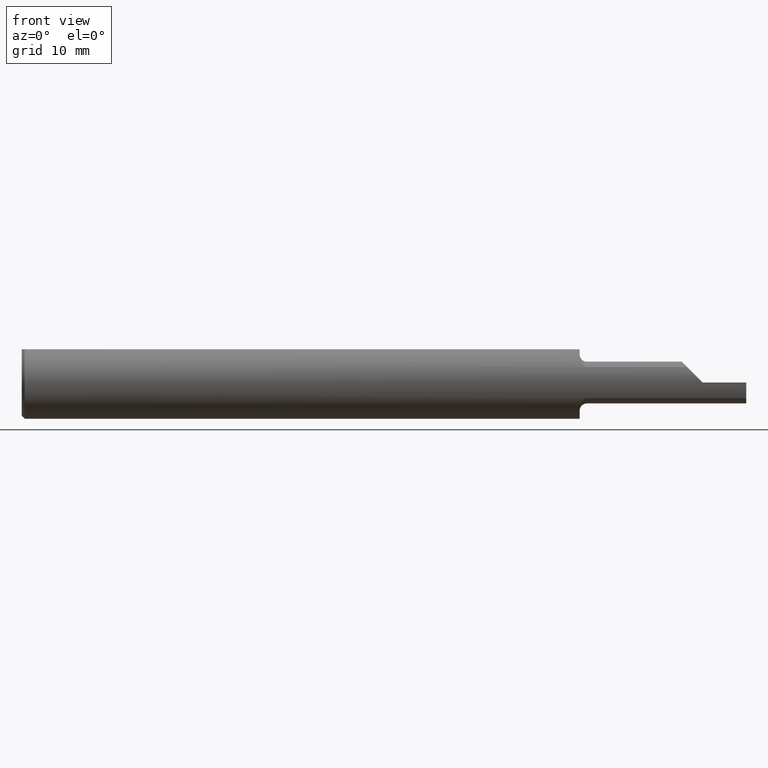
[diagram: clean part render]
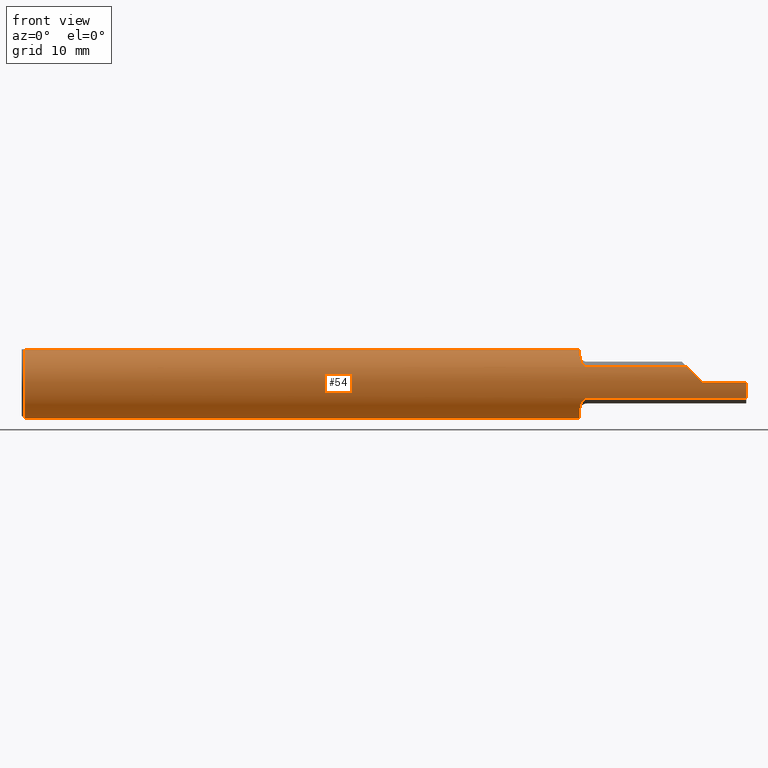
[diagram: same view with one face highlighted and labeled with its STEP entity id]
A machine part, front view. The second image highlights one B-rep face of the part: STEP entity #54.
In plain terms, the highlighted cylindrical surface (edge-blend (fillet) strip) has radius 3.1712 mm, axis along (-1, -0, -0).
Its self-contained STEP definition (entity closure, byte-faithful):
#4 = CARTESIAN_POINT ( 'NONE',  ( 2.313030448582554577, -0.1207107374854203552, 0.03696955141744460993 ) ) ;
#7 = DIRECTION ( 'NONE',  ( 1.000000000000000000, 0.000000000000000000, 0.000000000000000000 ) ) ;
#15 = ORIENTED_EDGE ( 'NONE', *, *, #138, .F. ) ;
#27 = CARTESIAN_POINT ( 'NONE',  ( 1.944775396606909901, -0.1121351437369266929, 0.05491640911844725137 ) ) ;
#32 = CARTESIAN_POINT ( 'NONE',  ( 1.934205702853136533, -0.1065695022460757119, 0.06518423682889426529 ) ) ;
#33 = EDGE_CURVE ( 'NONE', #263, #112, #49, .T. ) ;
#36 = CARTESIAN_POINT ( 'NONE',  ( 1.938831642198944216, -0.1097489668072911262, -0.05955949809225459524 ) ) ;
#40 = AXIS2_PLACEMENT_3D ( 'NONE', #523, #396, #604 ) ;
#41 = CARTESIAN_POINT ( 'NONE',  ( 2.500000000000000000, -0.1126372012336159106, -0.05385520771715490013 ) ) ;
#49 =( BOUNDED_CURVE ( )  B_SPLINE_CURVE ( 3, ( #565, #905, #4, #555 ),
 .UNSPECIFIED., .F., .T. ) 
 B_SPLINE_CURVE_WITH_KNOTS ( ( 4, 4 ),
 ( 4.712388980384689674, 5.158387891136146486 ),
 .UNSPECIFIED. ) 
 CURVE ( )  GEOMETRIC_REPRESENTATION_ITEM ( )  RATIONAL_B_SPLINE_CURVE ( ( 1.000000000000000000, 0.9834923269034181459, 0.9834923269034181459, 1.000000000000000000 ) ) 
 REPRESENTATION_ITEM ( '' )  );
#54 = ADVANCED_FACE ( 'NONE', ( #423 ), #209, .T. ) ;
#61 = VERTEX_POINT ( 'NONE', #251 ) ;
#64 = CARTESIAN_POINT ( 'NONE',  ( 0.01000000000000014939, 0.000000000000000000, 0.000000000000000000 ) ) ;
#68 = DIRECTION ( 'NONE',  ( 0.000000000000000000, 0.000000000000000000, -1.000000000000000000 ) ) ;
#71 = VERTEX_POINT ( 'NONE', #232 ) ;
#72 = CARTESIAN_POINT ( 'NONE',  ( 0.01000000000000014939, 0.000000000000000000, -0.1248500000000000026 ) ) ;
#73 = CARTESIAN_POINT ( 'NONE',  ( 1.925000000000000044, -0.08006202775636085678, 0.09579976102026406537 ) ) ;
#77 = DIRECTION ( 'NONE',  ( -1.000000000000000000, -0.000000000000000000, -0.000000000000000000 ) ) ;
#78 = VERTEX_POINT ( 'NONE', #41 ) ;
#85 = CARTESIAN_POINT ( 'NONE',  ( 1.925000000000000044, -0.08006202775636085678, 0.09579976102026406537 ) ) ;
#91 = CARTESIAN_POINT ( 'NONE',  ( 2.197229416990599926, -0.1126372012336159523, 0.05385520771715492788 ) ) ;
#93 = VECTOR ( 'NONE', #644, 39.37007874015748143 ) ;
#99 = VERTEX_POINT ( 'NONE', #720 ) ;
#105 = ORIENTED_EDGE ( 'NONE', *, *, #439, .T. ) ;
#112 = VERTEX_POINT ( 'NONE', #649 ) ;
#121 = DIRECTION ( 'NONE',  ( -1.000000000000000000, -0.000000000000000000, -0.000000000000000000 ) ) ;
#132 = ORIENTED_EDGE ( 'NONE', *, *, #567, .F. ) ;
#138 = EDGE_CURVE ( 'NONE', #865, #112, #366, .T. ) ;
#139 = CIRCLE ( 'NONE', #781, 0.1248500000000000026 ) ;
#158 = CARTESIAN_POINT ( 'NONE',  ( 1.925000000000000044, 0.04895916665957469188, 0.1148499999999999521 ) ) ;
#163 = CARTESIAN_POINT ( 'NONE',  ( 1.949999999999999956, -0.1126372012336159384, -0.05385520771715492788 ) ) ;
#169 = CARTESIAN_POINT ( 'NONE',  ( 1.944802286744101494, -0.1121433209818641918, -0.05490002475017542044 ) ) ;
#170 = AXIS2_PLACEMENT_3D ( 'NONE', #748, #628, #68 ) ;
#181 = VERTEX_POINT ( 'NONE', #321 ) ;
#189 = ORIENTED_EDGE ( 'NONE', *, *, #450, .F. ) ;
#192 = ORIENTED_EDGE ( 'NONE', *, *, #536, .F. ) ;
#209 = CYLINDRICAL_SURFACE ( 'NONE', #840, 0.1248500000000000026 ) ;
#211 = ORIENTED_EDGE ( 'NONE', *, *, #33, .T. ) ;
#219 = CARTESIAN_POINT ( 'NONE',  ( 0.000000000000000000, -0.04895916665957469188, 0.1148499999999999521 ) ) ;
#230 = CARTESIAN_POINT ( 'NONE',  ( 1.931963689329176281, -0.1039823658361042902, 0.06927888988223099287 ) ) ;
#232 = CARTESIAN_POINT ( 'NONE',  ( 2.500000000000000000, -0.1248500000000000026, 0.000000000000000000 ) ) ;
#235 = CARTESIAN_POINT ( 'NONE',  ( 1.927131788312331562, -0.09490829401950524880, 0.08128070330457727588 ) ) ;
#239 = CARTESIAN_POINT ( 'NONE',  ( 1.938827327854349969, -0.1097461625965755888, 0.05956452430189914521 ) ) ;
#241 = ORIENTED_EDGE ( 'NONE', *, *, #699, .F. ) ;
#251 = CARTESIAN_POINT ( 'NONE',  ( 1.925000000000000044, -0.08006202775636085678, -0.09579976102026406537 ) ) ;
#260 = VERTEX_POINT ( 'NONE', #534 ) ;
#263 = VERTEX_POINT ( 'NONE', #334 ) ;
#269 = VECTOR ( 'NONE', #7, 39.37007874015748143 ) ;
#309 = CARTESIAN_POINT ( 'NONE',  ( 1.947311625325188977, -0.1126372012336159800, -0.05385520771715495564 ) ) ;
#311 = ORIENTED_EDGE ( 'NONE', *, *, #414, .T. ) ;
#312 = EDGE_CURVE ( 'NONE', #78, #849, #393, .T. ) ;
#321 = CARTESIAN_POINT ( 'NONE',  ( 0.01000000000000014939, 0.04895916665957469188, 0.1148499999999999521 ) ) ;
#325 = CARTESIAN_POINT ( 'NONE',  ( 0.000000000000000000, 0.04895916665957469188, 0.1148499999999999521 ) ) ;
#334 = CARTESIAN_POINT ( 'NONE',  ( 2.350000000000000089, -0.1248500000000000165, 1.836970198721029441E-17 ) ) ;
#342 = VECTOR ( 'NONE', #121, 39.37007874015748143 ) ;
#365 = CARTESIAN_POINT ( 'NONE',  ( 1.924999999999999600, -0.08410689932160073101, 0.09241937033788394373 ) ) ;
#366 = LINE ( 'NONE', #91, #93 ) ;
#372 = CARTESIAN_POINT ( 'NONE',  ( 1.934201075002163650, -0.1065666435801154444, -0.06518942467260502305 ) ) ;
#377 = CARTESIAN_POINT ( 'NONE',  ( 1.925000000000000044, -0.08817212509557637024, -0.08902196918274879467 ) ) ;
#383 = ORIENTED_EDGE ( 'NONE', *, *, #741, .F. ) ;
#393 = LINE ( 'NONE', #465, #677 ) ;
#395 = B_SPLINE_CURVE_WITH_KNOTS ( 'NONE', 3,
 ( #163, #309, #169, #434, #36, #372, #714, #444, #377, #656 ),
 .UNSPECIFIED., .F., .F.,
 ( 4, 2, 2, 2, 4 ),
 ( 1.966290588655994118E-07, 0.0002016131704785886390, 0.0004030297118983116830, 0.0008058627947377699141, 0.001611528960416686376 ),
 .UNSPECIFIED. ) ;
#396 = DIRECTION ( 'NONE',  ( 1.000000000000000000, 0.000000000000000000, 0.000000000000000000 ) ) ;
#400 = AXIS2_PLACEMENT_3D ( 'NONE', #852, #643, #659 ) ;
#412 = CARTESIAN_POINT ( 'NONE',  ( 2.500000000000000000, 0.000000000000000000, 0.000000000000000000 ) ) ;
#414 = EDGE_CURVE ( 'NONE', #71, #263, #765, .T. ) ;
#423 = FACE_OUTER_BOUND ( 'NONE', #681, .T. ) ;
#434 = CARTESIAN_POINT ( 'NONE',  ( 1.940569942139686699, -0.1106838722249514628, -0.05778596358720611281 ) ) ;
#439 = EDGE_CURVE ( 'NONE', #901, #181, #887, .T. ) ;
#442 = VERTEX_POINT ( 'NONE', #73 ) ;
#444 = CARTESIAN_POINT ( 'NONE',  ( 1.926636985047215145, -0.09527184279433469072, -0.08129841834267806377 ) ) ;
#450 = EDGE_CURVE ( 'NONE', #99, #260, #629, .T. ) ;
#460 = ORIENTED_EDGE ( 'NONE', *, *, #481, .T. ) ;
#465 = CARTESIAN_POINT ( 'NONE',  ( 2.197229416990599926, -0.1126372012336159523, -0.05385520771715492788 ) ) ;
#469 = CIRCLE ( 'NONE', #40, 0.1248500000000000026 ) ;
#481 = EDGE_CURVE ( 'NONE', #99, #901, #734, .T. ) ;
#495 = ORIENTED_EDGE ( 'NONE', *, *, #835, .T. ) ;
#505 = CARTESIAN_POINT ( 'NONE',  ( 1.940577101532495297, -0.1106852405141600659, 0.05778304235403683431 ) ) ;
#515 = CARTESIAN_POINT ( 'NONE',  ( 1.947317747520886488, -0.1126372012340763062, 0.05385520771619223268 ) ) ;
#523 = CARTESIAN_POINT ( 'NONE',  ( 1.925000000000000044, 0.000000000000000000, 0.000000000000000000 ) ) ;
#532 = CIRCLE ( 'NONE', #170, 0.1248500000000000026 ) ;
#534 = CARTESIAN_POINT ( 'NONE',  ( 1.925000000000000044, -0.04895916665957478209, 0.1148499999999999521 ) ) ;
#536 = EDGE_CURVE ( 'NONE', #442, #865, #592, .T. ) ;
#537 = LINE ( 'NONE', #325, #342 ) ;
#548 = CARTESIAN_POINT ( 'NONE',  ( 1.949999999999999956, -0.1126372012336159384, -0.05385520771715492788 ) ) ;
#555 = CARTESIAN_POINT ( 'NONE',  ( 2.296144792282844627, -0.1126372012336159245, 0.05385520771715499033 ) ) ;
#561 = VERTEX_POINT ( 'NONE', #158 ) ;
#565 = CARTESIAN_POINT ( 'NONE',  ( 2.350000000000000089, -0.1248500000000000165, 1.836970198721029441E-17 ) ) ;
#567 = EDGE_CURVE ( 'NONE', #849, #61, #395, .T. ) ;
#592 = B_SPLINE_CURVE_WITH_KNOTS ( 'NONE', 3,
 ( #85, #365, #863, #235, #790, #230, #32, #239, #505, #27, #515, #874 ),
 .UNSPECIFIED., .F., .F.,
 ( 4, 2, 2, 2, 2, 4 ),
 ( 4.771871369859294055E-05, 0.0004453478112066586126, 0.0008429769087147242915, 0.001240606006222790079, 0.001439420554976828664, 0.001638235103730867684 ),
 .UNSPECIFIED. ) ;
#604 = DIRECTION ( 'NONE',  ( 0.000000000000000000, 0.000000000000000000, -1.000000000000000000 ) ) ;
#612 = DIRECTION ( 'NONE',  ( -1.000000000000000000, -0.000000000000000000, -0.000000000000000000 ) ) ;
#620 = DIRECTION ( 'NONE',  ( -1.000000000000000000, -0.000000000000000000, -0.000000000000000000 ) ) ;
#622 = EDGE_CURVE ( 'NONE', #561, #181, #537, .T. ) ;
#628 = DIRECTION ( 'NONE',  ( 1.000000000000000000, 0.000000000000000000, 0.000000000000000000 ) ) ;
#629 = LINE ( 'NONE', #219, #269 ) ;
#635 = DIRECTION ( 'NONE',  ( -1.000000000000000000, -0.000000000000000000, -0.000000000000000000 ) ) ;
#637 = DIRECTION ( 'NONE',  ( 0.000000000000000000, 0.000000000000000000, 1.000000000000000000 ) ) ;
#643 = DIRECTION ( 'NONE',  ( 1.000000000000000000, 0.000000000000000000, 0.000000000000000000 ) ) ;
#644 = DIRECTION ( 'NONE',  ( 1.000000000000000000, 0.000000000000000000, 0.000000000000000000 ) ) ;
#649 = CARTESIAN_POINT ( 'NONE',  ( 2.296144792282844627, -0.1126372012336159245, 0.05385520771715499033 ) ) ;
#654 = ORIENTED_EDGE ( 'NONE', *, *, #312, .F. ) ;
#656 = CARTESIAN_POINT ( 'NONE',  ( 1.925000000000000044, -0.08006202775636085678, -0.09579976102026406537 ) ) ;
#659 = DIRECTION ( 'NONE',  ( 0.000000000000000000, 0.000000000000000000, -1.000000000000000000 ) ) ;
#662 = AXIS2_PLACEMENT_3D ( 'NONE', #64, #695, #848 ) ;
#677 = VECTOR ( 'NONE', #620, 39.37007874015748143 ) ;
#681 = EDGE_LOOP ( 'NONE', ( #654, #495, #311, #211, #15, #192, #241, #189, #460, #105, #831, #383, #132 ) ) ;
#695 = DIRECTION ( 'NONE',  ( 1.000000000000000000, 0.000000000000000000, 0.000000000000000000 ) ) ;
#699 = EDGE_CURVE ( 'NONE', #260, #442, #469, .T. ) ;
#701 = CARTESIAN_POINT ( 'NONE',  ( 0.000000000000000000, 0.000000000000000000, 0.000000000000000000 ) ) ;
#714 = CARTESIAN_POINT ( 'NONE',  ( 1.931984701662964987, -0.1040128503387988124, -0.06923516485869815607 ) ) ;
#720 = CARTESIAN_POINT ( 'NONE',  ( 0.01000000000000014939, -0.04895916665957469188, 0.1148499999999999521 ) ) ;
#734 = CIRCLE ( 'NONE', #400, 0.1248500000000000026 ) ;
#741 = EDGE_CURVE ( 'NONE', #61, #561, #532, .T. ) ;
#748 = CARTESIAN_POINT ( 'NONE',  ( 1.925000000000000044, 0.000000000000000000, 0.000000000000000000 ) ) ;
#752 = DIRECTION ( 'NONE',  ( 0.000000000000000000, 0.000000000000000000, 1.000000000000000000 ) ) ;
#765 = LINE ( 'NONE', #774, #795 ) ;
#773 = CARTESIAN_POINT ( 'NONE',  ( 1.949999999999999956, -0.1126372012336159106, 0.05385520771715496258 ) ) ;
#774 = CARTESIAN_POINT ( 'NONE',  ( 3.749399456654640735E-32, -0.1248499999999999888, 3.061616997868381169E-16 ) ) ;
#781 = AXIS2_PLACEMENT_3D ( 'NONE', #412, #612, #752 ) ;
#790 = CARTESIAN_POINT ( 'NONE',  ( 1.928422913949381590, -0.09818711850433009536, 0.07727345435532413653 ) ) ;
#795 = VECTOR ( 'NONE', #635, 39.37007874015748143 ) ;
#831 = ORIENTED_EDGE ( 'NONE', *, *, #622, .F. ) ;
#835 = EDGE_CURVE ( 'NONE', #78, #71, #139, .T. ) ;
#840 = AXIS2_PLACEMENT_3D ( 'NONE', #701, #77, #637 ) ;
#848 = DIRECTION ( 'NONE',  ( 0.000000000000000000, 0.000000000000000000, -1.000000000000000000 ) ) ;
#849 = VERTEX_POINT ( 'NONE', #548 ) ;
#852 = CARTESIAN_POINT ( 'NONE',  ( 0.01000000000000014939, 0.000000000000000000, 0.000000000000000000 ) ) ;
#863 = CARTESIAN_POINT ( 'NONE',  ( 1.925428462481394432, -0.08787900168457786487, 0.08883365390605935108 ) ) ;
#865 = VERTEX_POINT ( 'NONE', #773 ) ;
#874 = CARTESIAN_POINT ( 'NONE',  ( 1.949999999999999956, -0.1126372012336159106, 0.05385520771715496258 ) ) ;
#887 = CIRCLE ( 'NONE', #662, 0.1248500000000000026 ) ;
#901 = VERTEX_POINT ( 'NONE', #72 ) ;
#905 = CARTESIAN_POINT ( 'NONE',  ( 2.331283499892309763, -0.1248499999999999888, 0.01871650010768969793 ) ) ;